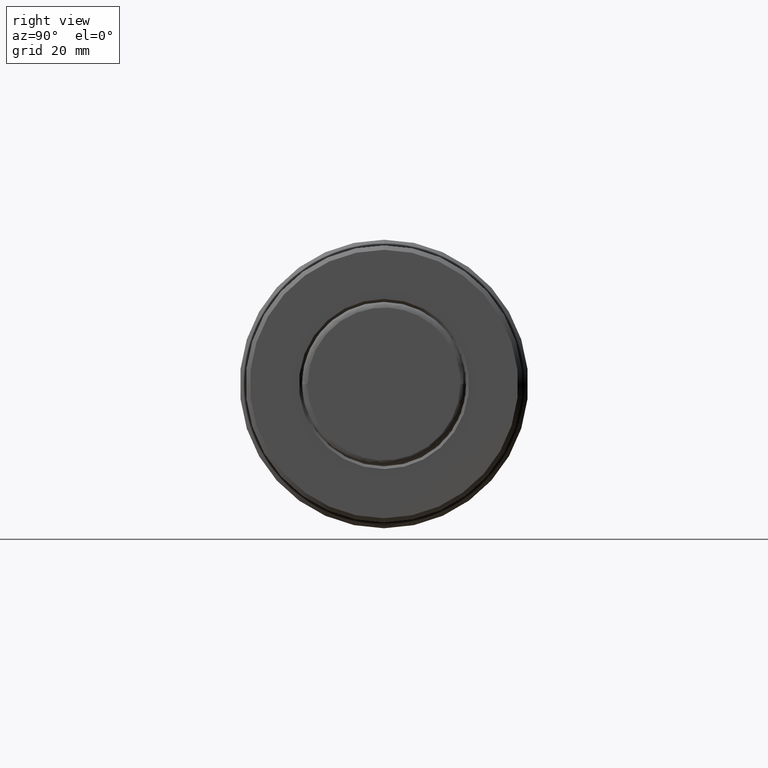
[diagram: clean part render]
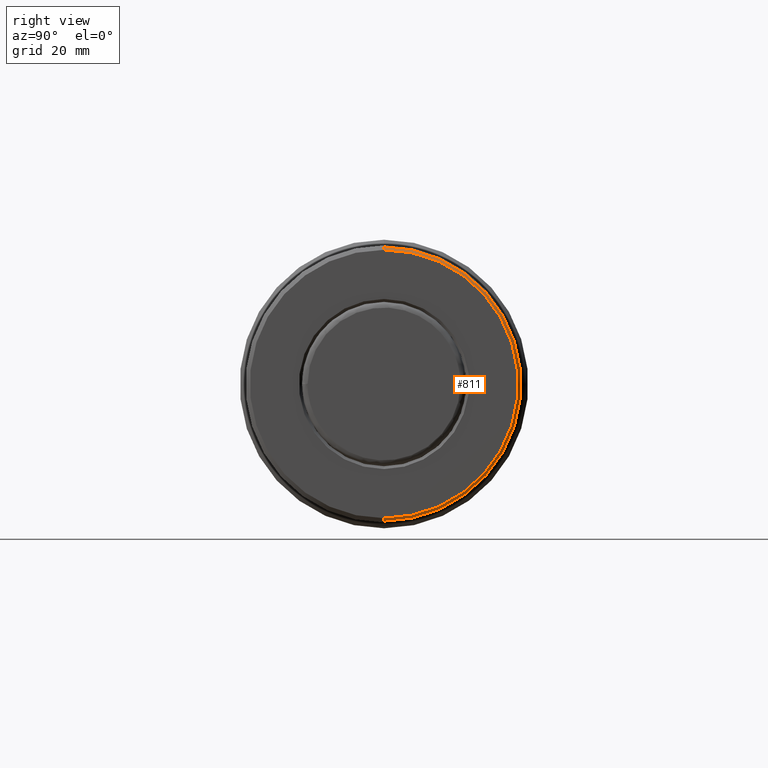
[diagram: same view with one face highlighted and labeled with its STEP entity id]
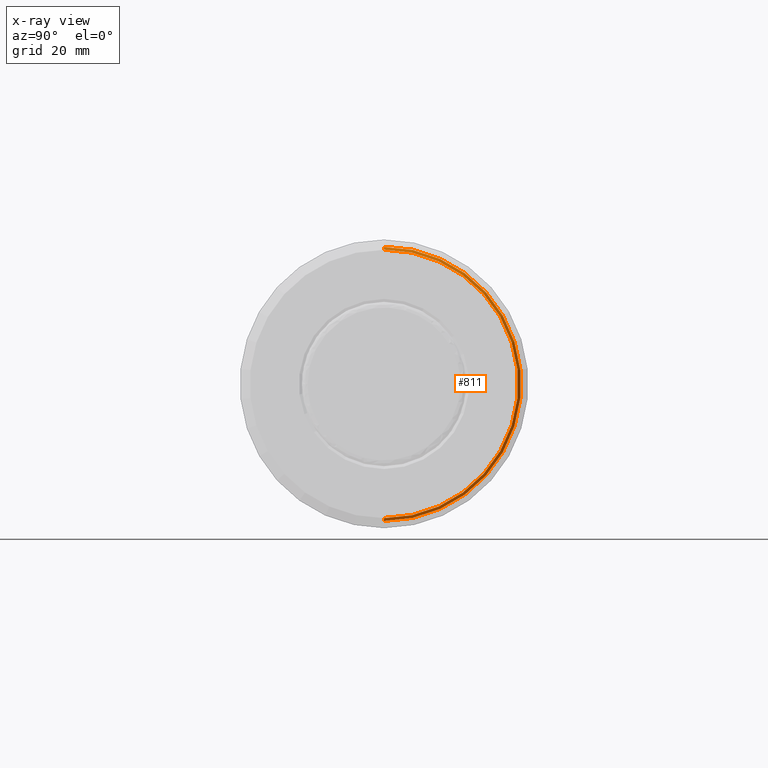
[diagram: x-ray of the same camera — body ghosted, the highlighted face saturated]
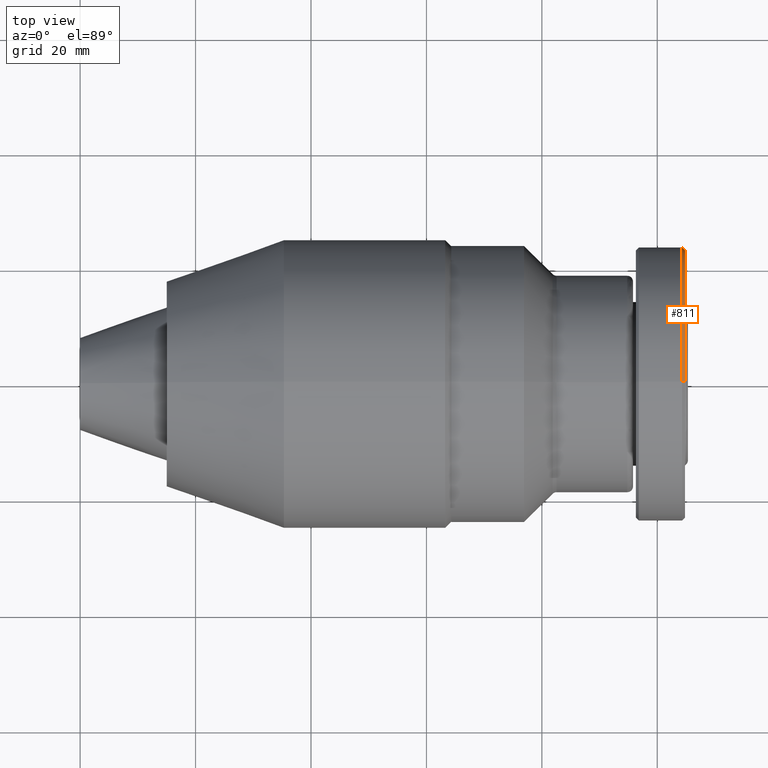
[diagram: same view with one face highlighted and labeled with its STEP entity id]
A machine part, right view. The second image highlights one B-rep face of the part: STEP entity #811.
The next image is the same camera in x-ray: the body ghosted, the highlighted face saturated — about 0% of this face is hidden behind the body in this view.
A second angle (top view) of the same face is appended — the face is thin or edge-on in the first view.
In plain terms, the highlighted conical surface has half-angle 45 deg.
Its self-contained STEP definition (entity closure, byte-faithful):
#18 = AXIS2_PLACEMENT_3D ( 'NONE', #752, #1160, #979 ) ;
#40 = CARTESIAN_POINT ( 'NONE',  ( 104.8000000000000100, 2.877919977996280700E-015, -23.25000000000000000 ) ) ;
#66 = FACE_OUTER_BOUND ( 'NONE', #266, .T. ) ;
#124 = DIRECTION ( 'NONE',  ( 1.000000000000000000, 0.0000000000000000000, 0.0000000000000000000 ) ) ;
#126 = VERTEX_POINT ( 'NONE', #725 ) ;
#249 = CIRCLE ( 'NONE', #774, 23.75000000000000000 ) ;
#256 = CARTESIAN_POINT ( 'NONE',  ( 104.8000000000000100, 0.0000000000000000000, 0.0000000000000000000 ) ) ;
#265 = LINE ( 'NONE', #940, #450 ) ;
#266 = EDGE_LOOP ( 'NONE', ( #1013, #953, #762, #368 ) ) ;
#289 = VERTEX_POINT ( 'NONE', #1083 ) ;
#313 = EDGE_CURVE ( 'NONE', #126, #1599, #249, .T. ) ;
#368 = ORIENTED_EDGE ( 'NONE', *, *, #1379, .F. ) ;
#450 = VECTOR ( 'NONE', #861, 999.9999999999998900 ) ;
#481 = DIRECTION ( 'NONE',  ( -1.000000000000000000, 0.0000000000000000000, -2.984470496304184100E-016 ) ) ;
#546 = EDGE_CURVE ( 'NONE', #1372, #126, #1156, .T. ) ;
#581 = CARTESIAN_POINT ( 'NONE',  ( 104.3000000000000000, 0.0000000000000000000, 0.0000000000000000000 ) ) ;
#628 = AXIS2_PLACEMENT_3D ( 'NONE', #256, #481, #813 ) ;
#706 = DIRECTION ( 'NONE',  ( 0.0000000000000000000, 1.000000000000000000, 0.0000000000000000000 ) ) ;
#725 = CARTESIAN_POINT ( 'NONE',  ( 104.3000000000000000, 2.908536147974964100E-015, -23.75000000000000000 ) ) ;
#752 = CARTESIAN_POINT ( 'NONE',  ( 104.8000000000000100, 0.0000000000000000000, -3.719058877550061800E-040 ) ) ;
#762 = ORIENTED_EDGE ( 'NONE', *, *, #313, .T. ) ;
#774 = AXIS2_PLACEMENT_3D ( 'NONE', #581, #124, #706 ) ;
#797 = DIRECTION ( 'NONE',  ( -0.7071067811865473500, 8.659560562354932900E-017, -0.7071067811865477900 ) ) ;
#811 = ADVANCED_FACE ( 'NONE', ( #66 ), #1436, .T. ) ;
#813 = DIRECTION ( 'NONE',  ( 0.0000000000000000000, 0.0000000000000000000, 1.000000000000000000 ) ) ;
#861 = DIRECTION ( 'NONE',  ( -0.7071067811865479100, 0.0000000000000000000, 0.7071067811865472400 ) ) ;
#940 = CARTESIAN_POINT ( 'NONE',  ( 104.8000000000000100, 0.0000000000000000000, 23.25000000000000000 ) ) ;
#953 = ORIENTED_EDGE ( 'NONE', *, *, #546, .T. ) ;
#979 = DIRECTION ( 'NONE',  ( 0.0000000000000000000, 0.0000000000000000000, 1.000000000000000000 ) ) ;
#1013 = ORIENTED_EDGE ( 'NONE', *, *, #1560, .F. ) ;
#1021 = CARTESIAN_POINT ( 'NONE',  ( 104.3000000000000000, 0.0000000000000000000, 23.75000000000000000 ) ) ;
#1083 = CARTESIAN_POINT ( 'NONE',  ( 104.8000000000000100, 0.0000000000000000000, 23.25000000000000000 ) ) ;
#1156 = LINE ( 'NONE', #1307, #1381 ) ;
#1160 = DIRECTION ( 'NONE',  ( 1.000000000000000000, -0.0000000000000000000, 2.984470496304184100E-016 ) ) ;
#1307 = CARTESIAN_POINT ( 'NONE',  ( 104.8000000000000100, 2.847303808017596100E-015, -23.25000000000000000 ) ) ;
#1310 = CIRCLE ( 'NONE', #18, 23.25000000000000000 ) ;
#1372 = VERTEX_POINT ( 'NONE', #40 ) ;
#1379 = EDGE_CURVE ( 'NONE', #289, #1599, #265, .T. ) ;
#1381 = VECTOR ( 'NONE', #797, 999.9999999999998900 ) ;
#1436 = CONICAL_SURFACE ( 'NONE', #628, 23.25000000000000000, 0.7853981633974482800 ) ;
#1560 = EDGE_CURVE ( 'NONE', #1372, #289, #1310, .T. ) ;
#1599 = VERTEX_POINT ( 'NONE', #1021 ) ;